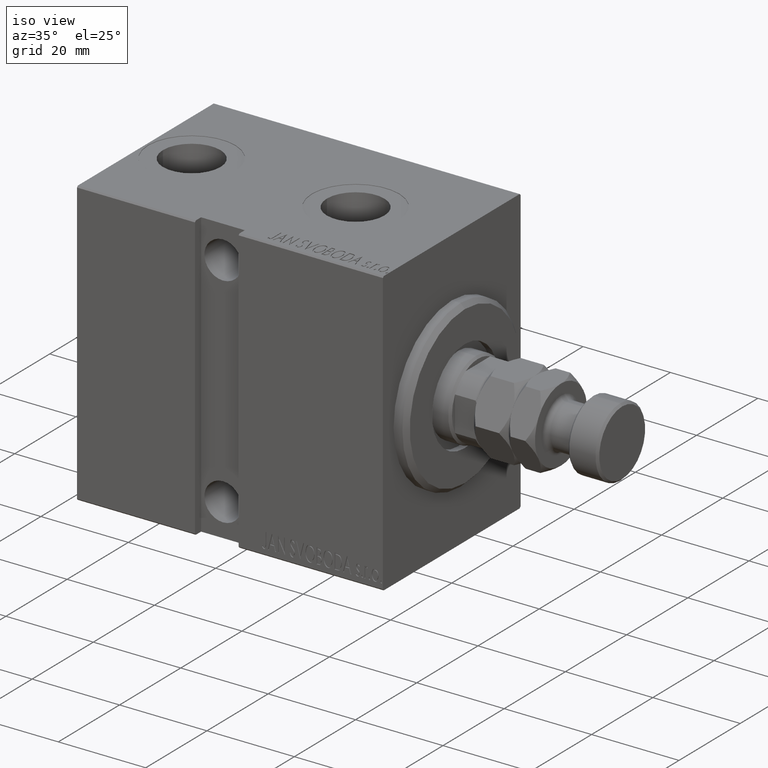
[diagram: clean part render]
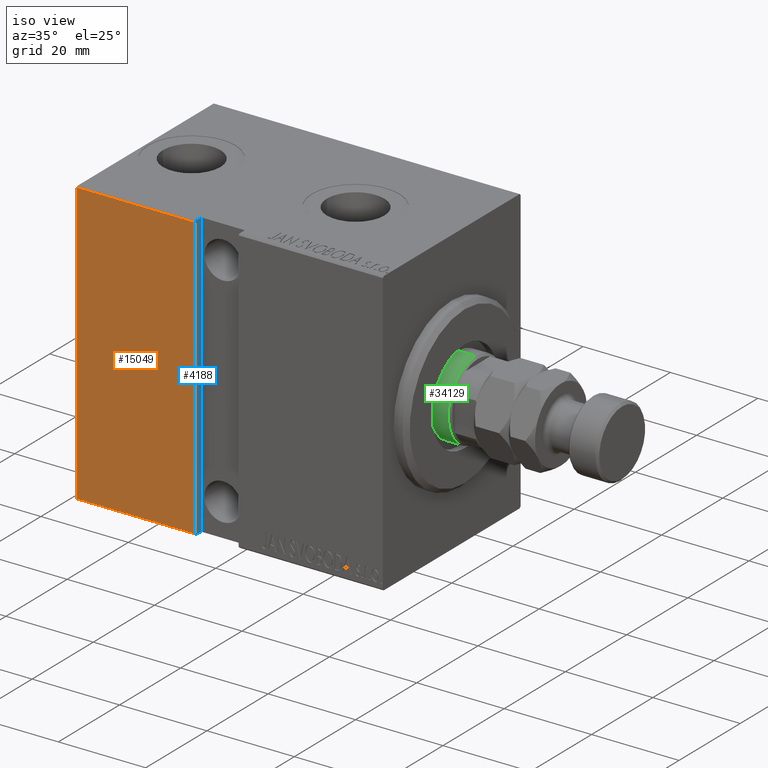
[diagram: same view with three faces highlighted in distinct colors, each labeled with its STEP entity id]
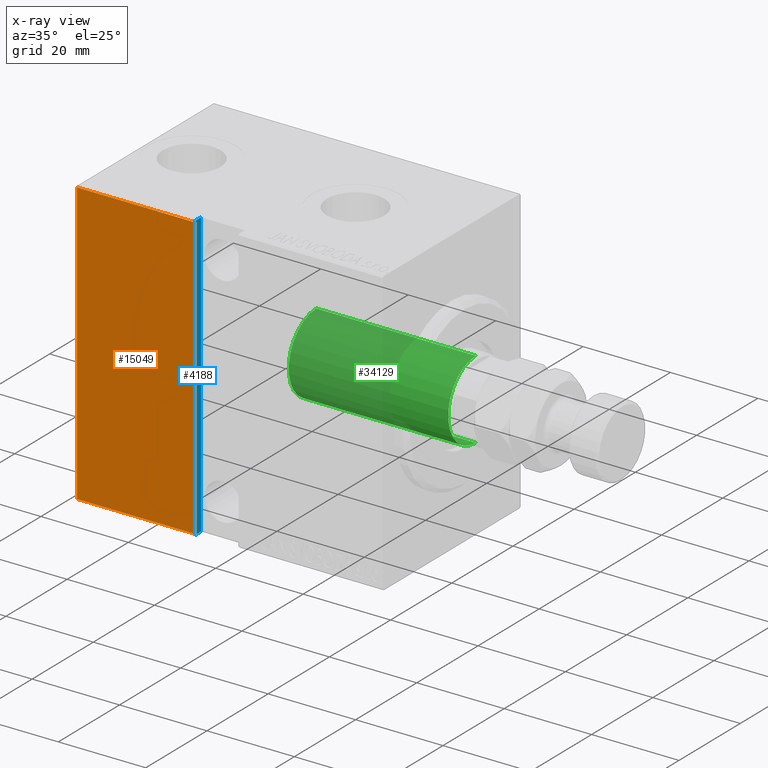
[diagram: x-ray of the same camera — body ghosted, the three highlighted faces saturated]
A machine part, iso view with three faces highlighted in distinct colors.
The next image is the same camera in x-ray (body ghosted, the three faces saturated) — at least one of them is partly hidden behind the body in this view.
Their STEP definitions:

[orange] entity #15049 — the highlighted planar face has unit normal (-0, 1, -0).
#113 = FACE_OUTER_BOUND ( 'NONE', #14860, .T. ) ;
#857 = ORIENTED_EDGE ( 'NONE', *, *, #5651, .F. ) ;
#2108 = VECTOR ( 'NONE', #30381, 1000.000000000000000 ) ;
#3343 = CARTESIAN_POINT ( 'NONE',  ( 70.00000000000000000, 22.50000000000000355, -32.19999999999999574 ) ) ;
#4121 = DIRECTION ( 'NONE',  ( 1.000000000000000000, 0.000000000000000000, 0.000000000000000000 ) ) ;
#5429 = EDGE_CURVE ( 'NONE', #13050, #25817, #21274, .T. ) ;
#5651 = EDGE_CURVE ( 'NONE', #13050, #8975, #31206, .T. ) ;
#8363 = VECTOR ( 'NONE', #8573, 1000.000000000000000 ) ;
#8573 = DIRECTION ( 'NONE',  ( -1.000000000000000000, 0.000000000000000000, 0.000000000000000000 ) ) ;
#8975 = VERTEX_POINT ( 'NONE', #18161 ) ;
#11606 = LINE ( 'NONE', #36590, #8363 ) ;
#13050 = VERTEX_POINT ( 'NONE', #17722 ) ;
#14255 = PLANE ( 'NONE',  #27274 ) ;
#14860 = EDGE_LOOP ( 'NONE', ( #30114, #16374, #857, #34190 ) ) ;
#15049 = ADVANCED_FACE ( 'NONE', ( #113 ), #14255, .F. ) ;
#16374 = ORIENTED_EDGE ( 'NONE', *, *, #22497, .T. ) ;
#16387 = CARTESIAN_POINT ( 'NONE',  ( 43.00000000000000000, 22.50000000000000000, -32.50000000000000000 ) ) ;
#17164 = CARTESIAN_POINT ( 'NONE',  ( 70.00000000000000000, 22.50000000000000355, -32.50000000000000000 ) ) ;
#17722 = CARTESIAN_POINT ( 'NONE',  ( 43.00000000000000711, 22.50000000000000000, 32.20000000000000284 ) ) ;
#18161 = CARTESIAN_POINT ( 'NONE',  ( 43.00000000000000000, 22.50000000000000000, -32.19999999999999574 ) ) ;
#20283 = DIRECTION ( 'NONE',  ( 0.000000000000000000, -1.000000000000000000, -1.067522139062650425E-16 ) ) ;
#20627 = LINE ( 'NONE', #17164, #2108 ) ;
#21274 = LINE ( 'NONE', #24969, #33787 ) ;
#22497 = EDGE_CURVE ( 'NONE', #40320, #8975, #11606, .T. ) ;
#24969 = CARTESIAN_POINT ( 'NONE',  ( 70.00000000000000000, 22.49999999999999645, 32.20000000000000284 ) ) ;
#25817 = VERTEX_POINT ( 'NONE', #41759 ) ;
#26359 = VECTOR ( 'NONE', #33976, 1000.000000000000000 ) ;
#27274 = AXIS2_PLACEMENT_3D ( 'NONE', #41794, #20283, #35325 ) ;
#30114 = ORIENTED_EDGE ( 'NONE', *, *, #41996, .F. ) ;
#30381 = DIRECTION ( 'NONE',  ( 0.000000000000000000, -1.067522139062650425E-16, 1.000000000000000000 ) ) ;
#31206 = LINE ( 'NONE', #16387, #26359 ) ;
#33787 = VECTOR ( 'NONE', #4121, 1000.000000000000000 ) ;
#33976 = DIRECTION ( 'NONE',  ( -1.067522139062651164E-16, -0.000000000000000000, -1.000000000000000000 ) ) ;
#34190 = ORIENTED_EDGE ( 'NONE', *, *, #5429, .T. ) ;
#35325 = DIRECTION ( 'NONE',  ( 0.000000000000000000, 1.067522139062650425E-16, -1.000000000000000000 ) ) ;
#36590 = CARTESIAN_POINT ( 'NONE',  ( 70.00000000000000000, 22.50000000000000355, -32.19999999999999574 ) ) ;
#40320 = VERTEX_POINT ( 'NONE', #3343 ) ;
#41759 = CARTESIAN_POINT ( 'NONE',  ( 70.00000000000000000, 22.49999999999999645, 32.20000000000000284 ) ) ;
#41794 = CARTESIAN_POINT ( 'NONE',  ( 70.00000000000000000, 22.50000000000000355, -32.50000000000000000 ) ) ;
#41996 = EDGE_CURVE ( 'NONE', #40320, #25817, #20627, .T. ) ;

[blue] entity #4188 — the highlighted planar face has unit normal (-1, 0, -0).
#3717 = CARTESIAN_POINT ( 'NONE',  ( 43.00000000000000711, 20.49999999999999645, 32.49999999999995737 ) ) ;
#3993 = DIRECTION ( 'NONE',  ( -1.067522139062651164E-16, -0.000000000000000000, -1.000000000000000000 ) ) ;
#4009 = DIRECTION ( 'NONE',  ( -7.548521435979691857E-17, -0.7071067811865474617, -0.7071067811865474617 ) ) ;
#4188 = ADVANCED_FACE ( 'NONE', ( #12909 ), #16164, .F. ) ;
#4209 = CARTESIAN_POINT ( 'NONE',  ( 43.00000000000000000, 22.19999999999999574, -32.50000000000000000 ) ) ;
#4700 = CARTESIAN_POINT ( 'NONE',  ( 43.00000000000000000, 22.50000000000000355, -32.19999999999999574 ) ) ;
#4840 = EDGE_LOOP ( 'NONE', ( #42270, #30744, #40518, #21367, #30389, #39276 ) ) ;
#5651 = EDGE_CURVE ( 'NONE', #13050, #8975, #31206, .T. ) ;
#6607 = DIRECTION ( 'NONE',  ( -0.000000000000000000, 1.000000000000000000, -0.000000000000000000 ) ) ;
#8975 = VERTEX_POINT ( 'NONE', #18161 ) ;
#10848 = DIRECTION ( 'NONE',  ( -7.548521435979779371E-17, 0.7071067811865393571, -0.7071067811865556774 ) ) ;
#12909 = FACE_OUTER_BOUND ( 'NONE', #4840, .T. ) ;
#13050 = VERTEX_POINT ( 'NONE', #17722 ) ;
#13338 = CARTESIAN_POINT ( 'NONE',  ( 43.00000000000000711, 20.49999999999999645, 32.49999999999995737 ) ) ;
#16111 = EDGE_CURVE ( 'NONE', #20191, #13050, #42771, .T. ) ;
#16164 = PLANE ( 'NONE',  #26327 ) ;
#16387 = CARTESIAN_POINT ( 'NONE',  ( 43.00000000000000000, 22.50000000000000000, -32.50000000000000000 ) ) ;
#17475 = DIRECTION ( 'NONE',  ( -0.000000000000000000, 1.000000000000000000, -0.000000000000000000 ) ) ;
#17537 = EDGE_CURVE ( 'NONE', #20590, #21336, #38743, .T. ) ;
#17722 = CARTESIAN_POINT ( 'NONE',  ( 43.00000000000000711, 22.50000000000000000, 32.20000000000000284 ) ) ;
#17873 = CARTESIAN_POINT ( 'NONE',  ( 43.00000000000000711, 20.50000000000000000, -32.50000000000000000 ) ) ;
#17938 = LINE ( 'NONE', #21630, #42647 ) ;
#18161 = CARTESIAN_POINT ( 'NONE',  ( 43.00000000000000000, 22.50000000000000000, -32.19999999999999574 ) ) ;
#20191 = VERTEX_POINT ( 'NONE', #29069 ) ;
#20590 = VERTEX_POINT ( 'NONE', #3717 ) ;
#20916 = CARTESIAN_POINT ( 'NONE',  ( 43.00000000000000000, 20.49999999999999645, -32.50000000000000000 ) ) ;
#21336 = VERTEX_POINT ( 'NONE', #17873 ) ;
#21367 = ORIENTED_EDGE ( 'NONE', *, *, #17537, .F. ) ;
#21630 = CARTESIAN_POINT ( 'NONE',  ( 43.00000000000000000, 20.49999999999999645, -32.50000000000000000 ) ) ;
#25897 = EDGE_CURVE ( 'NONE', #8975, #27941, #36423, .T. ) ;
#26327 = AXIS2_PLACEMENT_3D ( 'NONE', #30305, #41381, #41147 ) ;
#26359 = VECTOR ( 'NONE', #33976, 1000.000000000000000 ) ;
#27941 = VERTEX_POINT ( 'NONE', #4209 ) ;
#29069 = CARTESIAN_POINT ( 'NONE',  ( 43.00000000000000711, 22.19999999999999929, 32.49999999999995737 ) ) ;
#30305 = CARTESIAN_POINT ( 'NONE',  ( 43.00000000000000000, 20.49999999999999645, -32.50000000000000000 ) ) ;
#30389 = ORIENTED_EDGE ( 'NONE', *, *, #34185, .T. ) ;
#30744 = ORIENTED_EDGE ( 'NONE', *, *, #25897, .T. ) ;
#31063 = VECTOR ( 'NONE', #3993, 1000.000000000000000 ) ;
#31206 = LINE ( 'NONE', #16387, #26359 ) ;
#33976 = DIRECTION ( 'NONE',  ( -1.067522139062651164E-16, -0.000000000000000000, -1.000000000000000000 ) ) ;
#34185 = EDGE_CURVE ( 'NONE', #20590, #20191, #41789, .T. ) ;
#35445 = VECTOR ( 'NONE', #10848, 1000.000000000000000 ) ;
#36423 = LINE ( 'NONE', #4700, #43911 ) ;
#37222 = EDGE_CURVE ( 'NONE', #21336, #27941, #17938, .T. ) ;
#38743 = LINE ( 'NONE', #20916, #31063 ) ;
#39276 = ORIENTED_EDGE ( 'NONE', *, *, #16111, .T. ) ;
#40428 = VECTOR ( 'NONE', #6607, 1000.000000000000000 ) ;
#40518 = ORIENTED_EDGE ( 'NONE', *, *, #37222, .F. ) ;
#41147 = DIRECTION ( 'NONE',  ( -1.067522139062651164E-16, 0.000000000000000000, -1.000000000000000000 ) ) ;
#41381 = DIRECTION ( 'NONE',  ( 1.000000000000000000, 0.000000000000000000, -1.067522139062651164E-16 ) ) ;
#41789 = LINE ( 'NONE', #13338, #40428 ) ;
#42270 = ORIENTED_EDGE ( 'NONE', *, *, #5651, .T. ) ;
#42317 = CARTESIAN_POINT ( 'NONE',  ( 43.00000000000000711, 22.19999999999999929, 32.50000000000000711 ) ) ;
#42647 = VECTOR ( 'NONE', #17475, 1000.000000000000000 ) ;
#42771 = LINE ( 'NONE', #42317, #35445 ) ;
#43911 = VECTOR ( 'NONE', #4009, 1000.000000000000114 ) ;

[green] entity #34129 — the highlighted cylindrical surface (partial cylindrical patch) has radius 9 mm, axis along (-1, -0, 0).
#3553 = EDGE_CURVE ( 'NONE', #34193, #28383, #14447, .T. ) ;
#8482 = DIRECTION ( 'NONE',  ( -1.000000000000000000, 0.000000000000000000, 0.000000000000000000 ) ) ;
#8597 = VECTOR ( 'NONE', #38760, 1000.000000000000000 ) ;
#8649 = AXIS2_PLACEMENT_3D ( 'NONE', #40188, #30260, #8482 ) ;
#9213 = ORIENTED_EDGE ( 'NONE', *, *, #3553, .T. ) ;
#10566 = EDGE_CURVE ( 'NONE', #28383, #37804, #30229, .T. ) ;
#12527 = VECTOR ( 'NONE', #35659, 1000.000000000000000 ) ;
#13324 = EDGE_CURVE ( 'NONE', #39943, #37804, #18524, .T. ) ;
#14090 = CARTESIAN_POINT ( 'NONE',  ( 9.000000000000000000, 1.102182119232617714E-15, 69.50000000000000000 ) ) ;
#14447 = LINE ( 'NONE', #25314, #8597 ) ;
#14826 = CARTESIAN_POINT ( 'NONE',  ( 0.000000000000000000, 0.000000000000000000, 69.50000000000000000 ) ) ;
#15883 = CYLINDRICAL_SURFACE ( 'NONE', #8649, 9.000000000000000000 ) ;
#17680 = ORIENTED_EDGE ( 'NONE', *, *, #13324, .F. ) ;
#18524 = LINE ( 'NONE', #32867, #12527 ) ;
#19852 = AXIS2_PLACEMENT_3D ( 'NONE', #14826, #28961, #25451 ) ;
#23801 = CARTESIAN_POINT ( 'NONE',  ( -9.000000000000000000, 0.000000000000000000, 33.00000000000000000 ) ) ;
#25314 = CARTESIAN_POINT ( 'NONE',  ( -9.000000000000000000, 0.000000000000000000, 70.00000000000000000 ) ) ;
#25451 = DIRECTION ( 'NONE',  ( 1.000000000000000000, 0.000000000000000000, 0.000000000000000000 ) ) ;
#26296 = DIRECTION ( 'NONE',  ( 0.000000000000000000, 0.000000000000000000, 1.000000000000000000 ) ) ;
#28383 = VERTEX_POINT ( 'NONE', #23801 ) ;
#28961 = DIRECTION ( 'NONE',  ( 0.000000000000000000, 0.000000000000000000, -1.000000000000000000 ) ) ;
#29809 = CARTESIAN_POINT ( 'NONE',  ( 0.000000000000000000, 0.000000000000000000, 33.00000000000000000 ) ) ;
#30229 = CIRCLE ( 'NONE', #33202, 9.000000000000000000 ) ;
#30260 = DIRECTION ( 'NONE',  ( -0.000000000000000000, -0.000000000000000000, -1.000000000000000000 ) ) ;
#31895 = ORIENTED_EDGE ( 'NONE', *, *, #40721, .T. ) ;
#32867 = CARTESIAN_POINT ( 'NONE',  ( 9.000000000000000000, 1.102182119232617714E-15, 70.00000000000000000 ) ) ;
#33202 = AXIS2_PLACEMENT_3D ( 'NONE', #29809, #26296, #44568 ) ;
#33806 = ORIENTED_EDGE ( 'NONE', *, *, #10566, .T. ) ;
#34129 = ADVANCED_FACE ( 'NONE', ( #43653 ), #15883, .T. ) ;
#34193 = VERTEX_POINT ( 'NONE', #38103 ) ;
#35659 = DIRECTION ( 'NONE',  ( -0.000000000000000000, -0.000000000000000000, -1.000000000000000000 ) ) ;
#37804 = VERTEX_POINT ( 'NONE', #39183 ) ;
#38103 = CARTESIAN_POINT ( 'NONE',  ( -9.000000000000000000, 0.000000000000000000, 69.50000000000000000 ) ) ;
#38333 = CIRCLE ( 'NONE', #19852, 9.000000000000000000 ) ;
#38760 = DIRECTION ( 'NONE',  ( -0.000000000000000000, -0.000000000000000000, -1.000000000000000000 ) ) ;
#39183 = CARTESIAN_POINT ( 'NONE',  ( 9.000000000000000000, 1.102182119232617714E-15, 33.00000000000000000 ) ) ;
#39943 = VERTEX_POINT ( 'NONE', #14090 ) ;
#40188 = CARTESIAN_POINT ( 'NONE',  ( 0.000000000000000000, 0.000000000000000000, 70.00000000000000000 ) ) ;
#40332 = EDGE_LOOP ( 'NONE', ( #17680, #31895, #9213, #33806 ) ) ;
#40721 = EDGE_CURVE ( 'NONE', #39943, #34193, #38333, .T. ) ;
#43653 = FACE_OUTER_BOUND ( 'NONE', #40332, .T. ) ;
#44568 = DIRECTION ( 'NONE',  ( 1.000000000000000000, 0.000000000000000000, 0.000000000000000000 ) ) ;